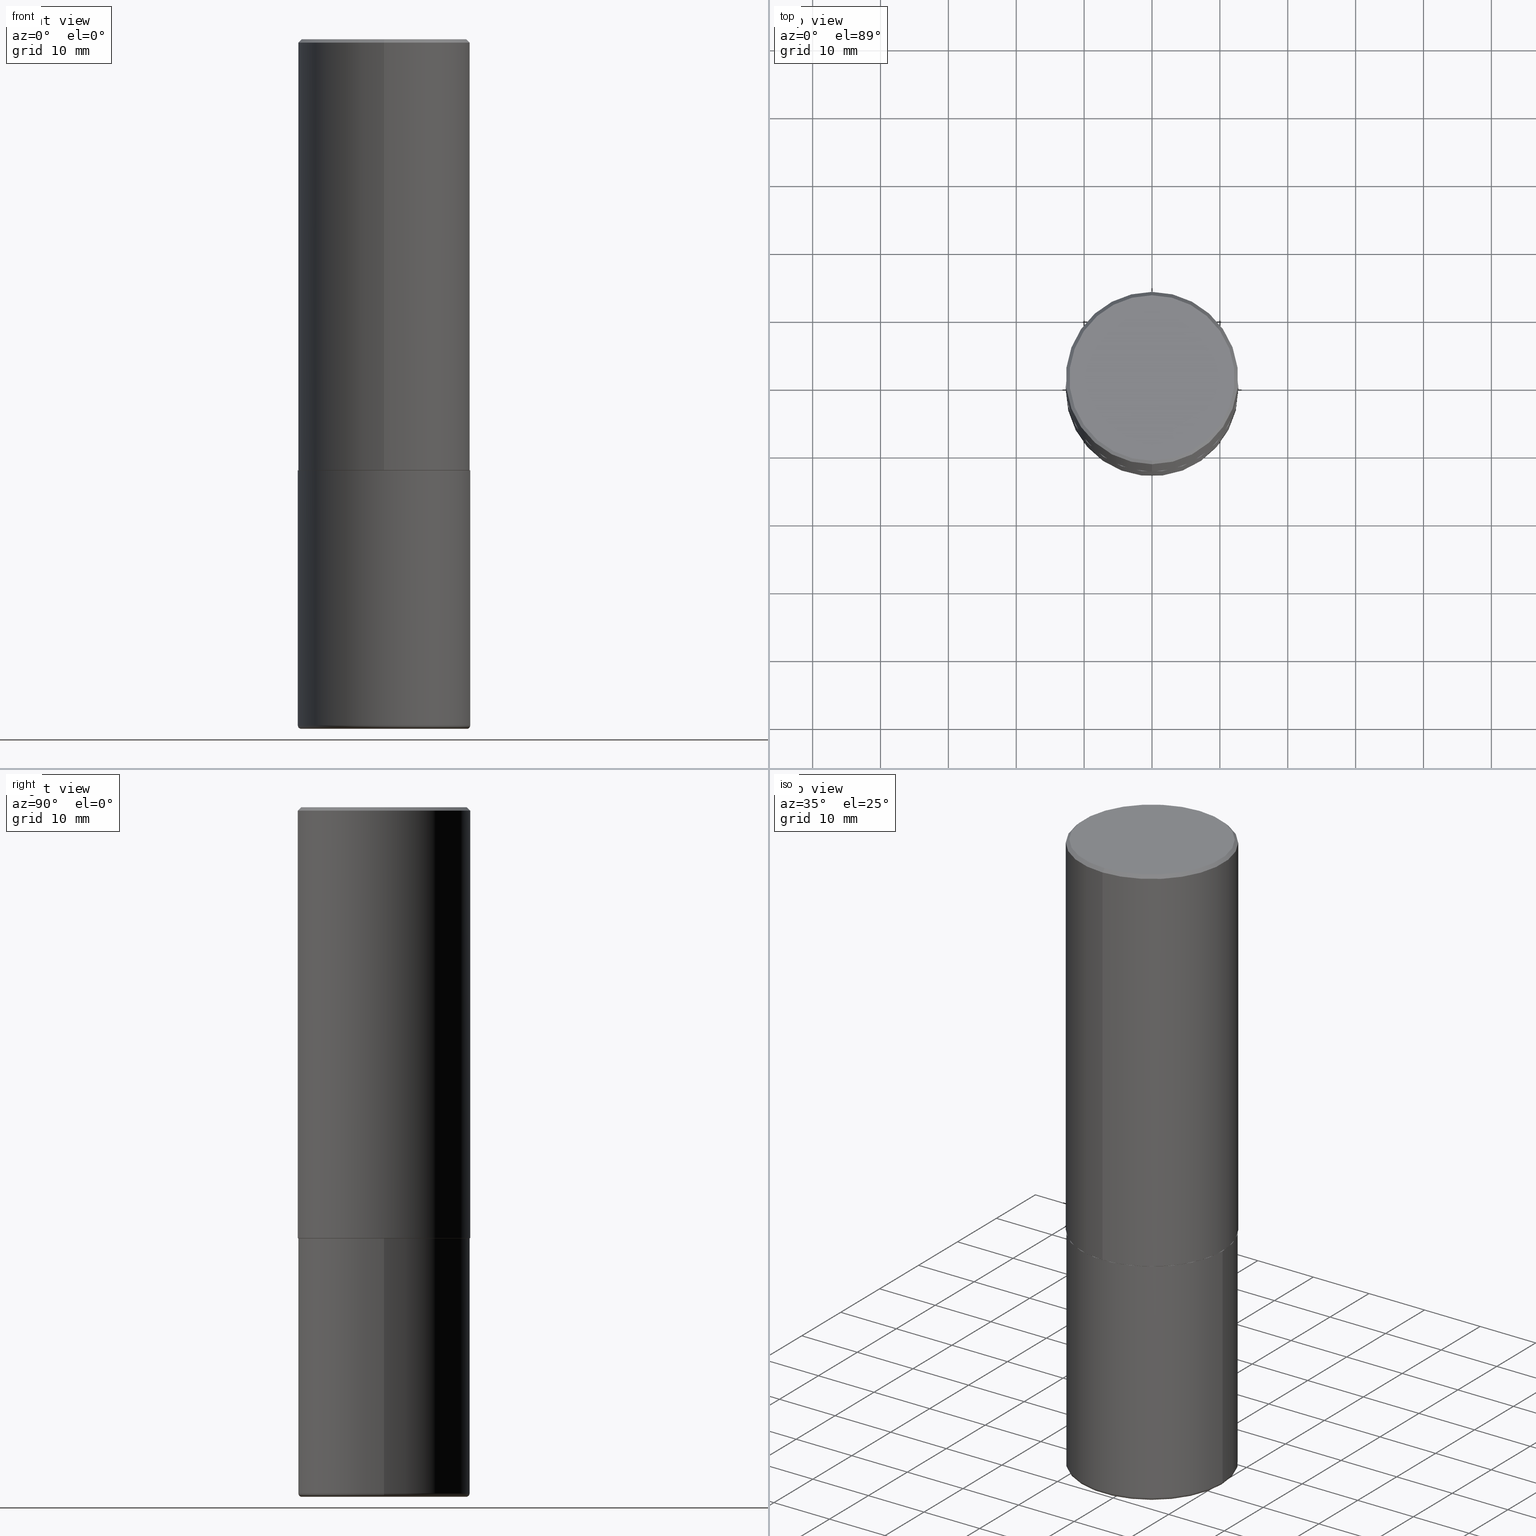
[diagram: canonical four-view strip — front | top / right | iso, engineering-drawing reading convention]
A machine part, canonical four-view strip (front | top / right | iso — engineering-drawing reading convention). The complete STEP part file that produces these views, byte-faithful:
ISO-10303-21;
HEADER;
FILE_DESCRIPTION (( 'STEP AP203' ),
    '1' );
FILE_NAME ('38351.STEP',
    '2024-03-03T00:17:31',
    ( '' ),
    ( '' ),
    'SwSTEP 2.0',
    'SolidWorks 2023',
    '' );
FILE_SCHEMA (( 'CONFIG_CONTROL_DESIGN' ));
ENDSEC;

DATA;
#1 = COORDINATED_UNIVERSAL_TIME_OFFSET ( 5, 0, .BEHIND. ) ;
#2 = CARTESIAN_POINT ( 'NONE',  ( 0.000000000000000000, 0.000000000000000000, 0.000000000000000000 ) ) ;
#3 = EDGE_CURVE ( 'NONE', #182, #62, #68, .T. ) ;
#4 = AXIS2_PLACEMENT_3D ( 'NONE', #321, #292, #352 ) ;
#5 = CC_DESIGN_APPROVAL ( #368, ( #34 ) ) ;
#6 = DIRECTION ( 'NONE',  ( -2.446218909101186334E-29, 3.490407148774155485E-15, 1.000000000000000000 ) ) ;
#7 = DIRECTION ( 'NONE',  ( -6.982962677686265922E-15, -1.000000000000000000, 3.490407148774155485E-15 ) ) ;
#8 = EDGE_CURVE ( 'NONE', #250, #210, #212, .T. ) ;
#9 = EDGE_CURVE ( 'NONE', #182, #363, #323, .T. ) ;
#10 = ORIENTED_EDGE ( 'NONE', *, *, #67, .F. ) ;
#11 = CALENDAR_DATE ( 2024, 2, 3 ) ;
#12 = DIRECTION ( 'NONE',  ( -2.445468806185136597E-29, 3.491481338843145583E-15, 1.000000000000000000 ) ) ;
#13 = DESIGN_CONTEXT ( 'detailed design', #174, 'design' ) ;
#14 = PERSON_AND_ORGANIZATION ( #133, #213 ) ;
#15 = APPROVAL_ROLE ( '' ) ;
#16 = AXIS2_PLACEMENT_3D ( 'NONE', #140, #269, #145 ) ;
#17 = DIRECTION ( 'NONE',  ( -6.982962677686265922E-15, -1.000000000000000000, 3.284787166730577015E-15 ) ) ;
#18 =( GEOMETRIC_REPRESENTATION_CONTEXT ( 3 ) GLOBAL_UNCERTAINTY_ASSIGNED_CONTEXT ( ( #418 ) ) GLOBAL_UNIT_ASSIGNED_CONTEXT ( ( #355, #197, #394 ) ) REPRESENTATION_CONTEXT ( 'NONE', 'WORKASPACE' ) );
#19 = ORIENTED_EDGE ( 'NONE', *, *, #412, .F. ) ;
#20 = COORDINATED_UNIVERSAL_TIME_OFFSET ( 5, 0, .BEHIND. ) ;
#21 = ADVANCED_FACE ( 'NONE', ( #61 ), #141, .T. ) ;
#22 = SECURITY_CLASSIFICATION_LEVEL ( 'unclassified' ) ;
#23 = ORIENTED_EDGE ( 'NONE', *, *, #297, .T. ) ;
#24 = EDGE_CURVE ( 'NONE', #101, #250, #324, .T. ) ;
#25 = PERSON_AND_ORGANIZATION ( #133, #213 ) ;
#26 = CIRCLE ( 'NONE', #264, 0.5000000000000002220 ) ;
#27 = ORIENTED_EDGE ( 'NONE', *, *, #82, .F. ) ;
#28 = SECURITY_CLASSIFICATION ( '', '', #22 ) ;
#29 = CARTESIAN_POINT ( 'NONE',  ( 6.113101053843866582E-29, -8.722527464786616105E-15, -2.499000000000000110 ) ) ;
#30 = ORIENTED_EDGE ( 'NONE', *, *, #8, .F. ) ;
#31 = CC_DESIGN_PERSON_AND_ORGANIZATION_ASSIGNMENT ( #14, #270, ( #392 ) ) ;
#32 = DIRECTION ( 'NONE',  ( 4.937700262164533054E-15, 0.7071067811865430208, -0.7071067811865517916 ) ) ;
#33 = LENGTH_MEASURE_WITH_UNIT ( LENGTH_MEASURE( 0.02539999999999999897 ), #316 );
#34 = PRODUCT_DEFINITION_FORMATION_WITH_SPECIFIED_SOURCE ( 'ANY', '', #154, .NOT_KNOWN. ) ;
#35 = CARTESIAN_POINT ( 'NONE',  ( -3.430248998885764992E-15, -0.5000000000000001110, -0.01999999999999835937 ) ) ;
#36 = CARTESIAN_POINT ( 'NONE',  ( 5.129053803320841623E-45, -7.318431721278877929E-31, -2.096727232480353724E-16 ) ) ;
#37 = CIRCLE ( 'NONE', #155, 0.4989999999999999991 ) ;
#38 = LINE ( 'NONE', #171, #144 ) ;
#39 = ORIENTED_EDGE ( 'NONE', *, *, #9, .F. ) ;
#40 = EDGE_CURVE ( 'NONE', #210, #250, #26, .T. ) ;
#41 = CARTESIAN_POINT ( 'NONE',  ( -3.430248998885764992E-15, -0.5000000000000001110, -0.01999999999999835937 ) ) ;
#42 = EDGE_CURVE ( 'NONE', #334, #62, #374, .T. ) ;
#43 = ORIENTED_EDGE ( 'NONE', *, *, #42, .F. ) ;
#44 = AXIS2_PLACEMENT_3D ( 'NONE', #340, #59, #373 ) ;
#45 = APPROVAL_PERSON_ORGANIZATION ( #367, #304, #15 ) ;
#46 = COORDINATED_UNIVERSAL_TIME_OFFSET ( 5, 0, .BEHIND. ) ;
#47 = DIRECTION ( 'NONE',  ( 1.000000000000000000, -6.982962677686268288E-15, 0.000000000000000000 ) ) ;
#48 = CARTESIAN_POINT ( 'NONE',  ( 3.421651712066271240E-15, 0.4800000000000002043, -1.885068154659630992E-15 ) ) ;
#49 = ORIENTED_EDGE ( 'NONE', *, *, #100, .T. ) ;
#50 = CALENDAR_DATE ( 2024, 2, 3 ) ;
#51 = PERSON_AND_ORGANIZATION ( #133, #213 ) ;
#52 = CARTESIAN_POINT ( 'NONE',  ( 6.113672015462842613E-29, -8.728703347107864943E-15, -2.500000000000000000 ) ) ;
#53 = ORIENTED_EDGE ( 'NONE', *, *, #268, .F. ) ;
#54 = LOCAL_TIME ( 19, 17, 31.00000000000000000, #1 ) ;
#55 = ORIENTED_EDGE ( 'NONE', *, *, #24, .T. ) ;
#56 = EDGE_CURVE ( 'NONE', #363, #334, #361, .T. ) ;
#57 = CARTESIAN_POINT ( 'NONE',  ( 6.115547272752964714E-29, -8.726017871935386741E-15, -2.499999999999999556 ) ) ;
#58 = ORIENTED_EDGE ( 'NONE', *, *, #67, .T. ) ;
#59 = DIRECTION ( 'NONE',  ( -2.445468806185136597E-29, 3.491481338843145583E-15, 1.000000000000000000 ) ) ;
#60 = CC_DESIGN_DATE_AND_TIME_ASSIGNMENT ( #113, #239, ( #28 ) ) ;
#61 = FACE_OUTER_BOUND ( 'NONE', #203, .T. ) ;
#62 = VERTEX_POINT ( 'NONE', #94 ) ;
#63 = FACE_OUTER_BOUND ( 'NONE', #411, .T. ) ;
#64 = VECTOR ( 'NONE', #241, 39.37007874015748143 ) ;
#65 = CIRCLE ( 'NONE', #397, 0.4989999999999999991 ) ;
#66 = CARTESIAN_POINT ( 'NONE',  ( -3.484498376165385415E-15, -0.4990000000000087144, -2.499999999999997780 ) ) ;
#67 = EDGE_CURVE ( 'NONE', #334, #277, #131, .T. ) ;
#68 = CIRCLE ( 'NONE', #84, 0.01999999999999985470 ) ;
#69 = CC_DESIGN_APPROVAL ( #304, ( #28 ) ) ;
#70 = ORIENTED_EDGE ( 'NONE', *, *, #56, .F. ) ;
#71 = CARTESIAN_POINT ( 'NONE',  ( -0.5000000000000000000, -7.759685859051291847E-15, -2.500000000000000000 ) ) ;
#72 = CARTESIAN_POINT ( 'NONE',  ( 0.000000000000000000, 0.000000000000000000, 0.000000000000000000 ) ) ;
#73 = CARTESIAN_POINT ( 'NONE',  ( -0.4799999999999999822, -1.048549059694723984E-14, -3.979999999999999982 ) ) ;
#74 = ADVANCED_FACE ( 'NONE', ( #290 ), #129, .T. ) ;
#75 = LOCAL_TIME ( 19, 17, 31.00000000000000000, #46 ) ;
#76 = DIRECTION ( 'NONE',  ( -2.446218909101186334E-29, 3.490407148774155485E-15, 1.000000000000000000 ) ) ;
#77 = CARTESIAN_POINT ( 'NONE',  ( 9.781875224740546387E-29, -1.396592535537258233E-14, -4.000000000000000000 ) ) ;
#78 = DIRECTION ( 'NONE',  ( -2.445468806185136597E-29, 3.491481338843145583E-15, 1.000000000000000000 ) ) ;
#79 = ADVANCED_FACE ( 'NONE', ( #384 ), #338, .T. ) ;
#80 = VERTEX_POINT ( 'NONE', #48 ) ;
#81 = DIRECTION ( 'NONE',  ( 1.000000000000000000, -6.982962677686267499E-15, 0.000000000000000000 ) ) ;
#82 = EDGE_CURVE ( 'NONE', #277, #279, #143, .T. ) ;
#83 = FACE_OUTER_BOUND ( 'NONE', #318, .T. ) ;
#84 = AXIS2_PLACEMENT_3D ( 'NONE', #73, #134, #391 ) ;
#85 = ORIENTED_EDGE ( 'NONE', *, *, #255, .F. ) ;
#86 = FACE_OUTER_BOUND ( 'NONE', #339, .T. ) ;
#87 = DIRECTION ( 'NONE',  ( 2.438088387897960049E-29, -3.491481338843145188E-15, -1.000000000000000000 ) ) ;
#88 = PERSON_AND_ORGANIZATION ( #133, #213 ) ;
#89 = DIRECTION ( 'NONE',  ( 0.000000000000000000, 0.000000000000000000, 1.000000000000000000 ) ) ;
#90 = ORIENTED_EDGE ( 'NONE', *, *, #139, .T. ) ;
#91 = DIRECTION ( 'NONE',  ( 2.446218909101186054E-29, -3.490407148774155485E-15, -1.000000000000000000 ) ) ;
#92 = ORIENTED_EDGE ( 'NONE', *, *, #263, .F. ) ;
#93 = CARTESIAN_POINT ( 'NONE',  ( -3.491481338843073796E-15, -0.5000000000000089928, -2.498999999999998778 ) ) ;
#94 = CARTESIAN_POINT ( 'NONE',  ( -0.4999999999999998335, -1.034338204979522126E-14, -3.979999999999999982 ) ) ;
#95 = AXIS2_PLACEMENT_3D ( 'NONE', #97, #354, #98 ) ;
#96 = DIRECTION ( 'NONE',  ( -6.982962677686265922E-15, -1.000000000000000000, 3.490407148774155485E-15 ) ) ;
#97 = CARTESIAN_POINT ( 'NONE',  ( 6.113672015462842613E-29, -8.728703347107864943E-15, -2.500000000000000000 ) ) ;
#98 = DIRECTION ( 'NONE',  ( 1.000000000000000000, -6.982962677686269077E-15, 0.000000000000000000 ) ) ;
#99 = AXIS2_PLACEMENT_3D ( 'NONE', #262, #201, #331 ) ;
#100 = EDGE_CURVE ( 'NONE', #266, #210, #214, .T. ) ;
#101 = VERTEX_POINT ( 'NONE', #151 ) ;
#102 = FACE_OUTER_BOUND ( 'NONE', #124, .T. ) ;
#103 = CARTESIAN_POINT ( 'NONE',  ( 9.781875224740546387E-29, -1.396592535537258233E-14, -4.000000000000000000 ) ) ;
#104 = VECTOR ( 'NONE', #353, 39.37007874015748143 ) ;
#105 = LOCAL_TIME ( 19, 17, 31.00000000000000000, #245 ) ;
#106 = DIRECTION ( 'NONE',  ( -2.446218909101186334E-29, 3.490407148774155485E-15, 1.000000000000000000 ) ) ;
#107 = ADVANCED_FACE ( 'NONE', ( #179 ), #119, .T. ) ;
#108 = APPROVAL_STATUS ( 'not_yet_approved' ) ;
#109 = TOROIDAL_SURFACE ( 'NONE', #347, 0.4799999999999999822, 0.01999999999999985470 ) ;
#110 = CONICAL_SURFACE ( 'NONE', #175, 0.4989999999999999991, 0.7853981633979605359 ) ;
#111 = CARTESIAN_POINT ( 'NONE',  ( 4.892437818202398557E-31, -6.980814297548349082E-17, -0.02000000000000010797 ) ) ;
#112 = ORIENTED_EDGE ( 'NONE', *, *, #42, .T. ) ;
#113 = DATE_AND_TIME ( #307, #287 ) ;
#114 = CARTESIAN_POINT ( 'NONE',  ( 3.491481338843133355E-15, 0.4999999999999999445, -0.02000000000000185310 ) ) ;
#115 = DIRECTION ( 'NONE',  ( -2.446218909101186054E-29, 3.490407148774155485E-15, 1.000000000000000000 ) ) ;
#116 = PERSON_AND_ORGANIZATION_ROLE ( 'creator' ) ;
#117 = EDGE_LOOP ( 'NONE', ( #283, #375, #393, #146 ) ) ;
#118 = DIRECTION ( 'NONE',  ( 2.446218909101186334E-29, -3.490407148774155485E-15, -1.000000000000000000 ) ) ;
#119 = CONICAL_SURFACE ( 'NONE', #246, 0.4989999999999999991, 0.7853981633979605359 ) ;
#120 = ORIENTED_EDGE ( 'NONE', *, *, #24, .F. ) ;
#121 = FACE_OUTER_BOUND ( 'NONE', #357, .T. ) ;
#122 = FACE_OUTER_BOUND ( 'NONE', #117, .T. ) ;
#123 = APPROVAL_ROLE ( '' ) ;
#124 = EDGE_LOOP ( 'NONE', ( #285, #152, #401, #19 ) ) ;
#125 = CLOSED_SHELL ( 'NONE', ( #74, #149, #236, #188, #414, #390 ) ) ;
#126 = CC_DESIGN_APPROVAL ( #130, ( #392 ) ) ;
#127 = DIRECTION ( 'NONE',  ( -2.446218909101186334E-29, 3.490407148774155485E-15, 1.000000000000000000 ) ) ;
#128 = ADVANCED_FACE ( 'NONE', ( #185 ), #110, .T. ) ;
#129 = CYLINDRICAL_SURFACE ( 'NONE', #169, 0.5000000000000000000 ) ;
#130 = APPROVAL ( #221, 'UNSPECIFIED' ) ;
#131 = LINE ( 'NONE', #254, #104 ) ;
#132 = AXIS2_PLACEMENT_3D ( 'NONE', #52, #404, #309 ) ;
#133 = PERSON ( 'UNSPECIFIED', 'UNSPECIFIED', 'UNSPECIFIED', ('UNSPECIFIED'), ('UNSPECIFIED'), ('UNSPECIFIED') ) ;
#134 = DIRECTION ( 'NONE',  ( 7.105427357601001859E-15, 1.000000000000000000, -3.491481338843145583E-15 ) ) ;
#135 = APPROVAL_DATE_TIME ( #233, #368 ) ;
#136 = VECTOR ( 'NONE', #288, 39.37007874015748143 ) ;
#137 = EDGE_LOOP ( 'NONE', ( #184, #220 ) ) ;
#138 = EDGE_CURVE ( 'NONE', #403, #299, #370, .T. ) ;
#139 = EDGE_CURVE ( 'NONE', #62, #334, #205, .T. ) ;
#140 = CARTESIAN_POINT ( 'NONE',  ( 4.892437818202398557E-31, -6.980814297548349082E-17, -0.02000000000000010797 ) ) ;
#141 = CYLINDRICAL_SURFACE ( 'NONE', #234, 0.5000000000000001110 ) ;
#142 = DATE_AND_TIME ( #147, #105 ) ;
#143 = CIRCLE ( 'NONE', #132, 0.5000000000000000000 ) ;
#144 = VECTOR ( 'NONE', #298, 39.37007874015748143 ) ;
#145 = DIRECTION ( 'NONE',  ( -6.982962677686265922E-15, -1.000000000000000000, 3.491643216902136408E-15 ) ) ;
#146 = ORIENTED_EDGE ( 'NONE', *, *, #139, .F. ) ;
#147 = CALENDAR_DATE ( 2024, 2, 3 ) ;
#148 = CARTESIAN_POINT ( 'NONE',  ( 6.115547272752964714E-29, -8.726017871935386741E-15, -2.499999999999999556 ) ) ;
#149 = ADVANCED_FACE ( 'NONE', ( #121 ), #109, .T. ) ;
#150 = LINE ( 'NONE', #362, #170 ) ;
#151 = CARTESIAN_POINT ( 'NONE',  ( -3.484498376165385415E-15, -0.4990000000000087144, -2.499999999999997780 ) ) ;
#152 = ORIENTED_EDGE ( 'NONE', *, *, #320, .T. ) ;
#153 = CARTESIAN_POINT ( 'NONE',  ( 3.552713678800533273E-15, 0.4999999999999916178, -2.499000000000001886 ) ) ;
#154 = PRODUCT ( '38351', '38351', '', ( #405 ) ) ;
#155 = AXIS2_PLACEMENT_3D ( 'NONE', #253, #226, #199 ) ;
#156 = CIRCLE ( 'NONE', #410, 0.5000000000000000000 ) ;
#157 = ORIENTED_EDGE ( 'NONE', *, *, #412, .T. ) ;
#158 = ADVANCED_FACE ( 'NONE', ( #195 ), #192, .T. ) ;
#159 = DIRECTION ( 'NONE',  ( 1.000000000000000000, -6.982962677686267499E-15, 0.000000000000000000 ) ) ;
#160 = APPLICATION_CONTEXT ( 'configuration controlled 3d designs of mechanical parts and assemblies' ) ;
#161 = CYLINDRICAL_SURFACE ( 'NONE', #44, 0.5000000000000000000 ) ;
#162 = CC_DESIGN_DATE_AND_TIME_ASSIGNMENT ( #196, #252, ( #392 ) ) ;
#163 = DIRECTION ( 'NONE',  ( -6.982962677686266711E-15, -1.000000000000000000, 3.278217592397114284E-15 ) ) ;
#164 = DIRECTION ( 'NONE',  ( -4.851104656540950075E-15, -0.7071067811865479058, -0.7071067811865469066 ) ) ;
#165 = AXIS2_PLACEMENT_3D ( 'NONE', #111, #341, #372 ) ;
#166 = CIRCLE ( 'NONE', #176, 0.4800000000000002043 ) ;
#167 = DIRECTION ( 'NONE',  ( -2.445468806185136597E-29, 3.491481338843145583E-15, 1.000000000000000000 ) ) ;
#168 = DIRECTION ( 'NONE',  ( -2.446218909101186334E-29, 3.490407148774155485E-15, 1.000000000000000000 ) ) ;
#169 = AXIS2_PLACEMENT_3D ( 'NONE', #2, #386, #365 ) ;
#170 = VECTOR ( 'NONE', #76, 39.37007874015748143 ) ;
#171 = CARTESIAN_POINT ( 'NONE',  ( -0.5000000000000000000, 3.552713678800500929E-15, -2.459467545127452891E-29 ) ) ;
#172 = ORIENTED_EDGE ( 'NONE', *, *, #263, .T. ) ;
#173 = CARTESIAN_POINT ( 'NONE',  ( 0.4999999999999998335, -1.738757706743885397E-14, -3.979999999999999982 ) ) ;
#174 = APPLICATION_CONTEXT ( 'configuration controlled 3d designs of mechanical parts and assemblies' ) ;
#175 = AXIS2_PLACEMENT_3D ( 'NONE', #218, #369, #342 ) ;
#176 = AXIS2_PLACEMENT_3D ( 'NONE', #358, #168, #301 ) ;
#177 = CYLINDRICAL_SURFACE ( 'NONE', #371, 0.5000000000000001110 ) ;
#178 = CARTESIAN_POINT ( 'NONE',  ( -3.361644018908050450E-15, -0.4800000000000002043, 1.465722708163559804E-15 ) ) ;
#179 = FACE_OUTER_BOUND ( 'NONE', #327, .T. ) ;
#180 = DATE_AND_TIME ( #50, #377 ) ;
#181 = CARTESIAN_POINT ( 'NONE',  ( 3.545608251442960663E-15, 0.4989999999999912283, -2.500000000000001332 ) ) ;
#182 = VERTEX_POINT ( 'NONE', #208 ) ;
#183 = VECTOR ( 'NONE', #259, 39.37007874015748143 ) ;
#184 = ORIENTED_EDGE ( 'NONE', *, *, #364, .F. ) ;
#185 = FACE_OUTER_BOUND ( 'NONE', #314, .T. ) ;
#186 = PRODUCT_DEFINITION_SHAPE ( 'NONE', 'NONE',  #392 ) ;
#187 = ORIENTED_EDGE ( 'NONE', *, *, #387, .T. ) ;
#188 = ADVANCED_FACE ( 'NONE', ( #86 ), #161, .T. ) ;
#189 = PERSON_AND_ORGANIZATION_ROLE ( 'design_owner' ) ;
#190 = ORIENTED_EDGE ( 'NONE', *, *, #291, .F. ) ;
#191 = CARTESIAN_POINT ( 'NONE',  ( 4.206032757375876713E-29, -1.146055134077212698E-14, -2.500000000000000000 ) ) ;
#192 = CONICAL_SURFACE ( 'NONE', #251, 0.5000000000000000000, 0.7853981633974456145 ) ;
#193 = APPROVAL_PERSON_ORGANIZATION ( #25, #130, #123 ) ;
#194 = CC_DESIGN_PERSON_AND_ORGANIZATION_ASSIGNMENT ( #378, #189, ( #154 ) ) ;
#195 = FACE_OUTER_BOUND ( 'NONE', #207, .T. ) ;
#196 = DATE_AND_TIME ( #349, #54 ) ;
#197 =( NAMED_UNIT ( * ) PLANE_ANGLE_UNIT ( ) SI_UNIT ( $, .RADIAN. ) );
#198 = PERSON_AND_ORGANIZATION ( #133, #213 ) ;
#199 = DIRECTION ( 'NONE',  ( -6.982962677686265922E-15, -1.000000000000000000, 3.284787166730577015E-15 ) ) ;
#200 = DIRECTION ( 'NONE',  ( -2.446218909101186334E-29, 3.490407148774155485E-15, 1.000000000000000000 ) ) ;
#201 = DIRECTION ( 'NONE',  ( -2.446218909101186334E-29, 3.490407148774155485E-15, 1.000000000000000000 ) ) ;
#202 = VECTOR ( 'NONE', #164, 39.37007874015748854 ) ;
#203 = EDGE_LOOP ( 'NONE', ( #379, #306, #157, #350 ) ) ;
#204 = CC_DESIGN_PERSON_AND_ORGANIZATION_ASSIGNMENT ( #51, #278, ( #28 ) ) ;
#205 = CIRCLE ( 'NONE', #406, 0.4999999999999999445 ) ;
#206 = EDGE_LOOP ( 'NONE', ( #112, #231, #27, #10 ) ) ;
#207 = EDGE_LOOP ( 'NONE', ( #359, #302, #337, #85 ) ) ;
#208 = CARTESIAN_POINT ( 'NONE',  ( -0.4799999999999999822, -1.044935113675966299E-14, -4.000000000000000000 ) ) ;
#209 = CARTESIAN_POINT ( 'NONE',  ( 0.000000000000000000, 0.000000000000000000, 0.000000000000000000 ) ) ;
#210 = VERTEX_POINT ( 'NONE', #153 ) ;
#211 = DIRECTION ( 'NONE',  ( -6.982962677686265922E-15, -1.000000000000000000, 3.490407148774155485E-15 ) ) ;
#212 = CIRCLE ( 'NONE', #99, 0.5000000000000002220 ) ;
#213 = ORGANIZATION ( 'UNSPECIFIED', 'UNSPECIFIED', '' ) ;
#214 = LINE ( 'NONE', #181, #64 ) ;
#215 = CARTESIAN_POINT ( 'NONE',  ( 9.732965848616844417E-29, -1.389609572859572061E-14, -3.979999999999999982 ) ) ;
#216 = ADVANCED_FACE ( 'NONE', ( #408 ), #248, .F. ) ;
#217 = PERSON_AND_ORGANIZATION_ROLE ( 'design_supplier' ) ;
#218 = CARTESIAN_POINT ( 'NONE',  ( 6.115547272752964714E-29, -8.726017871935386741E-15, -2.499999999999999556 ) ) ;
#219 = CARTESIAN_POINT ( 'NONE',  ( 9.732965848616844417E-29, -1.389609572859572061E-14, -3.979999999999999982 ) ) ;
#220 = ORIENTED_EDGE ( 'NONE', *, *, #261, .F. ) ;
#221 = APPROVAL_STATUS ( 'not_yet_approved' ) ;
#222 = ORIENTED_EDGE ( 'NONE', *, *, #364, .T. ) ;
#223 = LINE ( 'NONE', #319, #224 ) ;
#224 = VECTOR ( 'NONE', #32, 39.37007874015748854 ) ;
#225 = APPROVAL_STATUS ( 'not_yet_approved' ) ;
#226 = DIRECTION ( 'NONE',  ( -2.446218909101186334E-29, 3.490407148774155485E-15, 1.000000000000000000 ) ) ;
#227 = AXIS2_PLACEMENT_3D ( 'NONE', #77, #78, #47 ) ;
#228 = ORIENTED_EDGE ( 'NONE', *, *, #255, .T. ) ;
#229 = ORIENTED_EDGE ( 'NONE', *, *, #3, .T. ) ;
#230 = CARTESIAN_POINT ( 'NONE',  ( 0.5000000000000000000, -1.222018468595099830E-14, -2.500000000000000000 ) ) ;
#231 = ORIENTED_EDGE ( 'NONE', *, *, #385, .T. ) ;
#232 = CARTESIAN_POINT ( 'NONE',  ( 3.552713678800501718E-15, 0.5000000000000001110, -1.745203574387078137E-15 ) ) ;
#233 = DATE_AND_TIME ( #11, #75 ) ;
#234 = AXIS2_PLACEMENT_3D ( 'NONE', #310, #396, #96 ) ;
#235 = CARTESIAN_POINT ( 'NONE',  ( 6.115547272752964714E-29, -8.726017871935386741E-15, -2.499999999999999556 ) ) ;
#236 = ADVANCED_FACE ( 'NONE', ( #63 ), #315, .F. ) ;
#237 = DIRECTION ( 'NONE',  ( -2.445468806185136597E-29, 3.491481338843145583E-15, 1.000000000000000000 ) ) ;
#238 = CARTESIAN_POINT ( 'NONE',  ( 4.892437818202398557E-31, -6.980814297548349082E-17, -0.02000000000000010797 ) ) ;
#239 = DATE_TIME_ROLE ( 'classification_date' ) ;
#240 = FACE_OUTER_BOUND ( 'NONE', #137, .T. ) ;
#241 = DIRECTION ( 'NONE',  ( 5.024295867790635654E-15, 0.7071067811869121700, 0.7071067811861828645 ) ) ;
#242 = DIRECTION ( 'NONE',  ( 1.000000000000000000, -6.982962677686269077E-15, 4.883557194083114022E-29 ) ) ;
#243 = DIRECTION ( 'NONE',  ( -2.445468806185136597E-29, 3.491481338843145583E-15, 1.000000000000000000 ) ) ;
#244 = ADVANCED_BREP_SHAPE_REPRESENTATION ( '38351', ( #282, #276, #295 ), #18 ) ;
#245 = COORDINATED_UNIVERSAL_TIME_OFFSET ( 5, 0, .BEHIND. ) ;
#246 = AXIS2_PLACEMENT_3D ( 'NONE', #57, #305, #17 ) ;
#247 = APPLICATION_PROTOCOL_DEFINITION ( 'international standard', 'config_control_design', 1994, #160 ) ;
#248 = PLANE ( 'NONE',  #256 ) ;
#249 = COORDINATED_UNIVERSAL_TIME_OFFSET ( 5, 0, .BEHIND. ) ;
#250 = VERTEX_POINT ( 'NONE', #93 ) ;
#251 = AXIS2_PLACEMENT_3D ( 'NONE', #238, #118, #376 ) ;
#252 = DATE_TIME_ROLE ( 'creation_date' ) ;
#253 = CARTESIAN_POINT ( 'NONE',  ( 6.115547272752964714E-29, -8.726017871935386741E-15, -2.499999999999999556 ) ) ;
#254 = CARTESIAN_POINT ( 'NONE',  ( 0.5000000000000000000, -3.491481338843133355E-15, 2.438088387897967896E-29 ) ) ;
#255 = EDGE_CURVE ( 'NONE', #80, #403, #223, .T. ) ;
#256 = AXIS2_PLACEMENT_3D ( 'NONE', #380, #91, #344 ) ;
#257 = CC_DESIGN_SECURITY_CLASSIFICATION ( #28, ( #34 ) ) ;
#258 = ORIENTED_EDGE ( 'NONE', *, *, #387, .F. ) ;
#259 = DIRECTION ( 'NONE',  ( -2.446218909101186334E-29, 3.490407148774155485E-15, 1.000000000000000000 ) ) ;
#260 = CARTESIAN_POINT ( 'NONE',  ( 4.892437818202398557E-31, -6.980814297548349082E-17, -0.02000000000000010797 ) ) ;
#261 = EDGE_CURVE ( 'NONE', #266, #101, #37, .T. ) ;
#262 = CARTESIAN_POINT ( 'NONE',  ( 6.113101053843866582E-29, -8.722527464786616105E-15, -2.499000000000000110 ) ) ;
#263 = EDGE_CURVE ( 'NONE', #279, #277, #271, .T. ) ;
#264 = AXIS2_PLACEMENT_3D ( 'NONE', #29, #127, #163 ) ;
#265 = AXIS2_PLACEMENT_3D ( 'NONE', #395, #87, #398 ) ;
#266 = VERTEX_POINT ( 'NONE', #351 ) ;
#267 = PLANE ( 'NONE',  #265 ) ;
#268 = EDGE_CURVE ( 'NONE', #80, #407, #330, .T. ) ;
#269 = DIRECTION ( 'NONE',  ( -2.446218909101186334E-29, 3.490407148774155485E-15, 1.000000000000000000 ) ) ;
#270 = PERSON_AND_ORGANIZATION_ROLE ( 'creator' ) ;
#271 = CIRCLE ( 'NONE', #95, 0.5000000000000000000 ) ;
#272 = TOROIDAL_SURFACE ( 'NONE', #417, 0.4799999999999999822, 0.01999999999999985470 ) ;
#273 = SHAPE_DEFINITION_REPRESENTATION ( #186, #244 ) ;
#274 = CARTESIAN_POINT ( 'NONE',  ( 9.732965848616844417E-29, -1.389609572859572061E-14, -3.979999999999999982 ) ) ;
#275 = APPROVAL_DATE_TIME ( #142, #304 ) ;
#276 = MANIFOLD_SOLID_BREP ( 'Body-Move/Copy2[2]', #416 ) ;
#277 = VERTEX_POINT ( 'NONE', #230 ) ;
#278 = PERSON_AND_ORGANIZATION_ROLE ( 'classification_officer' ) ;
#279 = VERTEX_POINT ( 'NONE', #71 ) ;
#280 = AXIS2_PLACEMENT_3D ( 'NONE', #191, #284, #382 ) ;
#281 = APPROVAL_PERSON_ORGANIZATION ( #198, #368, #289 ) ;
#282 = MANIFOLD_SOLID_BREP ( 'Body-Move/Copy2[1]', #125 ) ;
#283 = ORIENTED_EDGE ( 'NONE', *, *, #3, .F. ) ;
#284 = DIRECTION ( 'NONE',  ( 2.438088387897960049E-29, -3.491481338843145188E-15, -1.000000000000000000 ) ) ;
#285 = ORIENTED_EDGE ( 'NONE', *, *, #8, .T. ) ;
#286 = AXIS2_PLACEMENT_3D ( 'NONE', #103, #237, #366 ) ;
#287 = LOCAL_TIME ( 19, 17, 31.00000000000000000, #20 ) ;
#288 = DIRECTION ( 'NONE',  ( -4.937700262167077130E-15, -0.7071067811869072850, 0.7071067811861877495 ) ) ;
#289 = APPROVAL_ROLE ( '' ) ;
#290 = FACE_OUTER_BOUND ( 'NONE', #206, .T. ) ;
#291 = EDGE_CURVE ( 'NONE', #407, #299, #325, .T. ) ;
#292 = DIRECTION ( 'NONE',  ( -6.982962677686266711E-15, -1.000000000000000000, 3.491481338843145583E-15 ) ) ;
#293 = DIRECTION ( 'NONE',  ( -6.982962677686265922E-15, -1.000000000000000000, 3.490407148774155485E-15 ) ) ;
#294 = CC_DESIGN_PERSON_AND_ORGANIZATION_ASSIGNMENT ( #402, #116, ( #34 ) ) ;
#295 = AXIS2_PLACEMENT_3D ( 'NONE', #209, #89, #400 ) ;
#296 = ORIENTED_EDGE ( 'NONE', *, *, #385, .F. ) ;
#297 = EDGE_CURVE ( 'NONE', #407, #80, #166, .T. ) ;
#298 = DIRECTION ( 'NONE',  ( -2.445468806185136877E-29, 3.491481338843145188E-15, 1.000000000000000000 ) ) ;
#299 = VERTEX_POINT ( 'NONE', #41 ) ;
#300 = LINE ( 'NONE', #232, #183 ) ;
#301 = DIRECTION ( 'NONE',  ( -6.982962677686265922E-15, -1.000000000000000000, 3.490407148774155485E-15 ) ) ;
#302 = ORIENTED_EDGE ( 'NONE', *, *, #291, .T. ) ;
#303 = APPROVAL_DATE_TIME ( #180, #130 ) ;
#304 = APPROVAL ( #108, 'UNSPECIFIED' ) ;
#305 = DIRECTION ( 'NONE',  ( -2.446218909101186334E-29, 3.490407148774155485E-15, 1.000000000000000000 ) ) ;
#306 = ORIENTED_EDGE ( 'NONE', *, *, #40, .T. ) ;
#307 = CALENDAR_DATE ( 2024, 2, 3 ) ;
#308 = PLANE ( 'NONE',  #389 ) ;
#309 = DIRECTION ( 'NONE',  ( 1.000000000000000000, -6.982962677686269077E-15, 0.000000000000000000 ) ) ;
#310 = CARTESIAN_POINT ( 'NONE',  ( 0.000000000000000000, 0.000000000000000000, 0.000000000000000000 ) ) ;
#311 = ORIENTED_EDGE ( 'NONE', *, *, #138, .T. ) ;
#312 = ORIENTED_EDGE ( 'NONE', *, *, #82, .T. ) ;
#313 = APPLICATION_PROTOCOL_DEFINITION ( 'international standard', 'config_control_design', 1994, #174 ) ;
#314 = EDGE_LOOP ( 'NONE', ( #222, #49, #30, #120 ) ) ;
#315 = PLANE ( 'NONE',  #280 ) ;
#316 =( LENGTH_UNIT ( ) NAMED_UNIT ( * ) SI_UNIT ( $, .METRE. ) );
#317 = CIRCLE ( 'NONE', #227, 0.4799999999999999822 ) ;
#318 = EDGE_LOOP ( 'NONE', ( #258, #39 ) ) ;
#319 = CARTESIAN_POINT ( 'NONE',  ( 3.491481338843133355E-15, 0.4999999999999999445, -0.02000000000000185310 ) ) ;
#320 = EDGE_CURVE ( 'NONE', #210, #403, #300, .T. ) ;
#321 = CARTESIAN_POINT ( 'NONE',  ( 0.4799999999999999822, -1.724791781388513052E-14, -3.979999999999999982 ) ) ;
#322 = ORIENTED_EDGE ( 'NONE', *, *, #261, .T. ) ;
#323 = CIRCLE ( 'NONE', #286, 0.4799999999999999822 ) ;
#324 = LINE ( 'NONE', #66, #136 ) ;
#325 = LINE ( 'NONE', #35, #202 ) ;
#326 = CC_DESIGN_PERSON_AND_ORGANIZATION_ASSIGNMENT ( #88, #217, ( #34 ) ) ;
#327 = EDGE_LOOP ( 'NONE', ( #381, #322, #55, #333 ) ) ;
#328 = DIRECTION ( 'NONE',  ( -2.446218909101186334E-29, 3.490407148774155485E-15, 1.000000000000000000 ) ) ;
#329 = DIRECTION ( 'NONE',  ( -6.982962677686265922E-15, -1.000000000000000000, 3.284787166730577015E-15 ) ) ;
#330 = CIRCLE ( 'NONE', #383, 0.4800000000000002043 ) ;
#331 = DIRECTION ( 'NONE',  ( -6.982962677686266711E-15, -1.000000000000000000, 3.278217592397114284E-15 ) ) ;
#332 = DIMENSIONAL_EXPONENTS ( 1.000000000000000000, 0.000000000000000000, 0.000000000000000000, 0.000000000000000000, 0.000000000000000000, 0.000000000000000000, 0.000000000000000000 ) ;
#333 = ORIENTED_EDGE ( 'NONE', *, *, #40, .F. ) ;
#334 = VERTEX_POINT ( 'NONE', #173 ) ;
#335 = AXIS2_PLACEMENT_3D ( 'NONE', #415, #167, #159 ) ;
#336 = ORIENTED_EDGE ( 'NONE', *, *, #268, .T. ) ;
#337 = ORIENTED_EDGE ( 'NONE', *, *, #345, .T. ) ;
#338 = CONICAL_SURFACE ( 'NONE', #165, 0.5000000000000000000, 0.7853981633974456145 ) ;
#339 = EDGE_LOOP ( 'NONE', ( #296, #90, #58, #92 ) ) ;
#340 = CARTESIAN_POINT ( 'NONE',  ( 0.000000000000000000, 0.000000000000000000, 0.000000000000000000 ) ) ;
#341 = DIRECTION ( 'NONE',  ( 2.446218909101186334E-29, -3.490407148774155485E-15, -1.000000000000000000 ) ) ;
#342 = DIRECTION ( 'NONE',  ( -6.982962677686265922E-15, -1.000000000000000000, 3.284787166730577015E-15 ) ) ;
#343 = EDGE_LOOP ( 'NONE', ( #336, #23 ) ) ;
#344 = DIRECTION ( 'NONE',  ( 6.982962677686265922E-15, 1.000000000000000000, -3.490407148774155485E-15 ) ) ;
#345 = EDGE_CURVE ( 'NONE', #299, #403, #156, .T. ) ;
#346 = EDGE_LOOP ( 'NONE', ( #190, #53, #228, #311 ) ) ;
#347 = AXIS2_PLACEMENT_3D ( 'NONE', #215, #243, #413 ) ;
#348 = ADVANCED_FACE ( 'NONE', ( #102 ), #177, .T. ) ;
#349 = CALENDAR_DATE ( 2024, 2, 3 ) ;
#350 = ORIENTED_EDGE ( 'NONE', *, *, #138, .F. ) ;
#351 = CARTESIAN_POINT ( 'NONE',  ( 3.549160965121762351E-15, 0.4989999999999912283, -2.500000000000001332 ) ) ;
#352 = DIRECTION ( 'NONE',  ( 1.000000000000000000, -6.982962677686287221E-15, 0.000000000000000000 ) ) ;
#353 = DIRECTION ( 'NONE',  ( -2.445468806185136877E-29, 3.491481338843145188E-15, 1.000000000000000000 ) ) ;
#354 = DIRECTION ( 'NONE',  ( -2.445468806185136597E-29, 3.491481338843145583E-15, 1.000000000000000000 ) ) ;
#355 =( CONVERSION_BASED_UNIT ( 'INCH', #33 ) LENGTH_UNIT ( ) NAMED_UNIT ( #332 ) );
#356 = PRODUCT_RELATED_PRODUCT_CATEGORY ( 'detail', '', ( #154 ) ) ;
#357 = EDGE_LOOP ( 'NONE', ( #187, #229, #43, #70 ) ) ;
#358 = CARTESIAN_POINT ( 'NONE',  ( 5.129053803320841623E-45, -7.318431721278877929E-31, -2.096727232480353724E-16 ) ) ;
#359 = ORIENTED_EDGE ( 'NONE', *, *, #297, .F. ) ;
#360 = CARTESIAN_POINT ( 'NONE',  ( 0.4799999999999999822, -1.731774744066199067E-14, -4.000000000000000000 ) ) ;
#361 = CIRCLE ( 'NONE', #4, 0.01999999999999985470 ) ;
#362 = CARTESIAN_POINT ( 'NONE',  ( -3.491481338843133750E-15, -0.5000000000000001110, 1.745203574387078137E-15 ) ) ;
#363 = VERTEX_POINT ( 'NONE', #360 ) ;
#364 = EDGE_CURVE ( 'NONE', #101, #266, #65, .T. ) ;
#365 = DIRECTION ( 'NONE',  ( 1.000000000000000000, -6.982962677686266711E-15, 4.876176775795935793E-29 ) ) ;
#366 = DIRECTION ( 'NONE',  ( 1.000000000000000000, -6.982962677686268288E-15, 0.000000000000000000 ) ) ;
#367 = PERSON_AND_ORGANIZATION ( #133, #213 ) ;
#368 = APPROVAL ( #225, 'UNSPECIFIED' ) ;
#369 = DIRECTION ( 'NONE',  ( -2.446218909101186334E-29, 3.490407148774155485E-15, 1.000000000000000000 ) ) ;
#370 = CIRCLE ( 'NONE', #16, 0.5000000000000000000 ) ;
#371 = AXIS2_PLACEMENT_3D ( 'NONE', #72, #200, #7 ) ;
#372 = DIRECTION ( 'NONE',  ( 6.982962677686265922E-15, 1.000000000000000000, -3.491643216902136408E-15 ) ) ;
#373 = DIRECTION ( 'NONE',  ( 1.000000000000000000, -6.982962677686266711E-15, 4.876176775795935793E-29 ) ) ;
#374 = CIRCLE ( 'NONE', #335, 0.4999999999999999445 ) ;
#375 = ORIENTED_EDGE ( 'NONE', *, *, #9, .T. ) ;
#376 = DIRECTION ( 'NONE',  ( 6.982962677686265922E-15, 1.000000000000000000, -3.491643216902136408E-15 ) ) ;
#377 = LOCAL_TIME ( 19, 17, 31.00000000000000000, #249 ) ;
#378 = PERSON_AND_ORGANIZATION ( #133, #213 ) ;
#379 = ORIENTED_EDGE ( 'NONE', *, *, #320, .F. ) ;
#380 = CARTESIAN_POINT ( 'NONE',  ( 3.351822085289409125E-15, 0.4800000000000002043, -1.780231793035613097E-15 ) ) ;
#381 = ORIENTED_EDGE ( 'NONE', *, *, #100, .F. ) ;
#382 = DIRECTION ( 'NONE',  ( -1.000000000000000000, 6.982962677686265922E-15, -4.876176775795935793E-29 ) ) ;
#383 = AXIS2_PLACEMENT_3D ( 'NONE', #36, #328, #293 ) ;
#384 = FACE_OUTER_BOUND ( 'NONE', #346, .T. ) ;
#385 = EDGE_CURVE ( 'NONE', #62, #279, #38, .T. ) ;
#386 = DIRECTION ( 'NONE',  ( -2.445468806185136597E-29, 3.491481338843145583E-15, 1.000000000000000000 ) ) ;
#387 = EDGE_CURVE ( 'NONE', #363, #182, #317, .T. ) ;
#388 = DIRECTION ( 'NONE',  ( -6.982962677686265922E-15, -1.000000000000000000, 3.491643216902136408E-15 ) ) ;
#389 = AXIS2_PLACEMENT_3D ( 'NONE', #148, #115, #211 ) ;
#390 = ADVANCED_FACE ( 'NONE', ( #83 ), #267, .T. ) ;
#391 = DIRECTION ( 'NONE',  ( -1.000000000000000000, 7.105427357600977404E-15, 0.000000000000000000 ) ) ;
#392 = PRODUCT_DEFINITION ( 'UNKNOWN', '', #34, #13 ) ;
#393 = ORIENTED_EDGE ( 'NONE', *, *, #56, .T. ) ;
#394 =( NAMED_UNIT ( * ) SI_UNIT ( $, .STERADIAN. ) SOLID_ANGLE_UNIT ( ) );
#395 = CARTESIAN_POINT ( 'NONE',  ( 9.781875224740546387E-29, -1.396592535537258233E-14, -4.000000000000000000 ) ) ;
#396 = DIRECTION ( 'NONE',  ( -2.446218909101186334E-29, 3.490407148774155485E-15, 1.000000000000000000 ) ) ;
#397 = AXIS2_PLACEMENT_3D ( 'NONE', #235, #6, #329 ) ;
#398 = DIRECTION ( 'NONE',  ( -1.000000000000000000, 6.982962677686265922E-15, -4.876176775795935793E-29 ) ) ;
#399 = DIRECTION ( 'NONE',  ( -2.445468806185136597E-29, 3.491481338843145583E-15, 1.000000000000000000 ) ) ;
#400 = DIRECTION ( 'NONE',  ( 1.000000000000000000, 0.000000000000000000, 0.000000000000000000 ) ) ;
#401 = ORIENTED_EDGE ( 'NONE', *, *, #345, .F. ) ;
#402 = PERSON_AND_ORGANIZATION ( #133, #213 ) ;
#403 = VERTEX_POINT ( 'NONE', #114 ) ;
#404 = DIRECTION ( 'NONE',  ( -2.445468806185136597E-29, 3.491481338843145583E-15, 1.000000000000000000 ) ) ;
#405 = MECHANICAL_CONTEXT ( 'NONE', #160, 'mechanical' ) ;
#406 = AXIS2_PLACEMENT_3D ( 'NONE', #274, #399, #81 ) ;
#407 = VERTEX_POINT ( 'NONE', #178 ) ;
#408 = FACE_OUTER_BOUND ( 'NONE', #343, .T. ) ;
#409 = ADVANCED_FACE ( 'NONE', ( #240 ), #308, .F. ) ;
#410 = AXIS2_PLACEMENT_3D ( 'NONE', #260, #106, #388 ) ;
#411 = EDGE_LOOP ( 'NONE', ( #312, #172 ) ) ;
#412 = EDGE_CURVE ( 'NONE', #250, #299, #150, .T. ) ;
#413 = DIRECTION ( 'NONE',  ( 1.000000000000000000, -6.982962677686269077E-15, 4.883557194083114022E-29 ) ) ;
#414 = ADVANCED_FACE ( 'NONE', ( #122 ), #272, .T. ) ;
#415 = CARTESIAN_POINT ( 'NONE',  ( 9.732965848616844417E-29, -1.389609572859572061E-14, -3.979999999999999982 ) ) ;
#416 = CLOSED_SHELL ( 'NONE', ( #128, #348, #158, #79, #21, #107, #409, #216 ) ) ;
#417 = AXIS2_PLACEMENT_3D ( 'NONE', #219, #12, #242 ) ;
#418 = UNCERTAINTY_MEASURE_WITH_UNIT (LENGTH_MEASURE( 1.000000000000000082E-05 ), #355, 'distance_accuracy_value', 'NONE');
ENDSEC;
END-ISO-10303-21;
